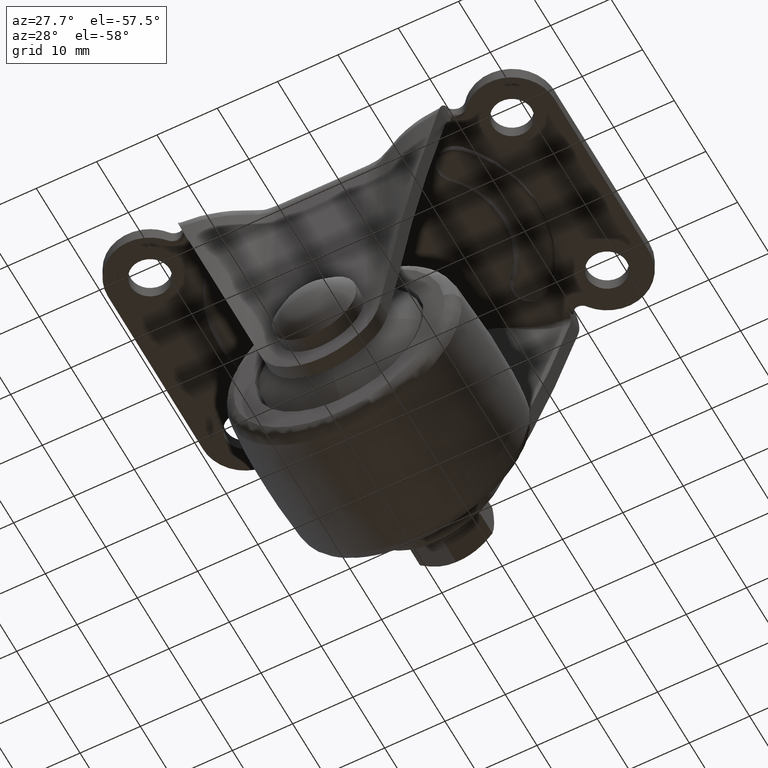
[diagram: clean part render]
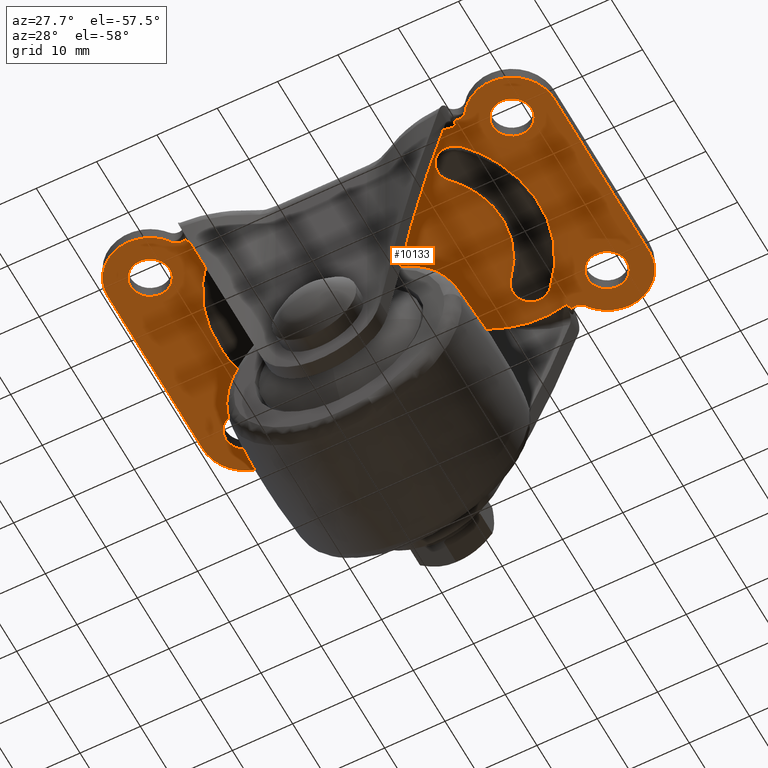
[diagram: same view with one face highlighted and labeled with its STEP entity id]
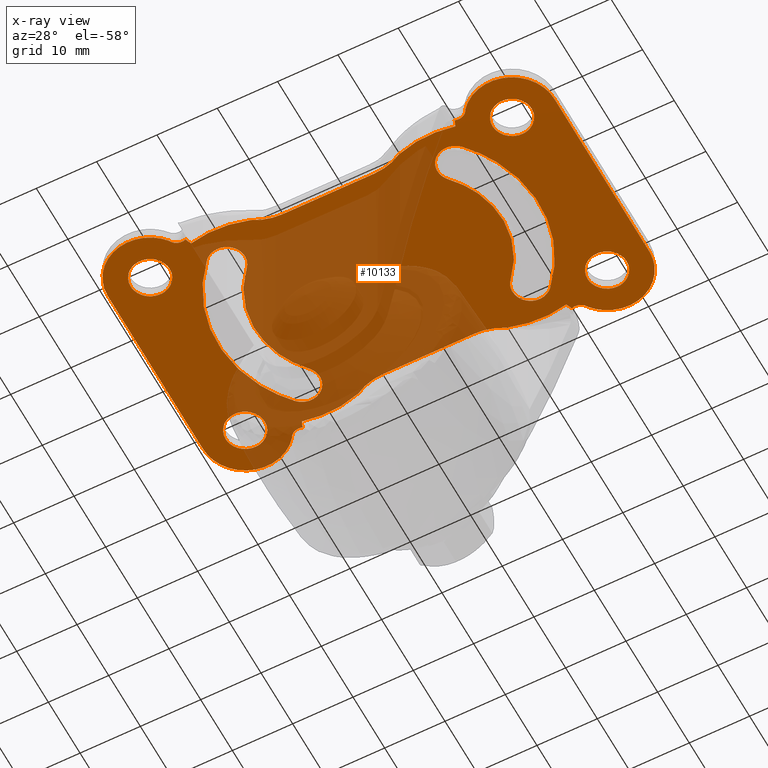
[diagram: x-ray of the same camera — body ghosted, the highlighted face saturated]
A machine part, auxiliary view. The second image highlights one B-rep face of the part: STEP entity #10133.
The next image is the same camera in x-ray: the body ghosted, the highlighted face saturated — about 42% of this face is hidden behind the body in this view.
In plain terms, the highlighted face is a freeform B-spline surface patch.
Its self-contained STEP definition (entity closure, byte-faithful):
#2371=CARTESIAN_POINT('',(-29.801592246333161,18.243938094859971,-2.299999999999971));
#2372=VERTEX_POINT('',#2371);
#2378=CARTESIAN_POINT('',(-26.750000000000000,14.999999999999821,-2.299999999999970));
#2379=VERTEX_POINT('',#2378);
#2380=CARTESIAN_POINT('',(-26.750000000000000,14.999999999999821,-2.299999999999970));
#2381=CARTESIAN_POINT('',(-26.750000000000007,18.057294717106135,-2.299999999999971));
#2382=CARTESIAN_POINT('',(-29.801592246333161,18.243938094859963,-2.299999999999971));
#2390=(BOUNDED_CURVE()B_SPLINE_CURVE(2,(#2380,#2381,#2382),.UNSPECIFIED.,.F.,.U.)B_SPLINE_CURVE_WITH_KNOTS((3,3),(0.500000000000000,0.739332962222973),.UNSPECIFIED.)CURVE()GEOMETRIC_REPRESENTATION_ITEM()RATIONAL_B_SPLINE_CURVE((1.0,0.719603993305420,0.976072041632492))REPRESENTATION_ITEM(''));
#2391=EDGE_CURVE('',#2379,#2372,#2390,.T.);
#2393=CARTESIAN_POINT('',(-30.383611262793419,11.772719039336801,-2.299999999999970));
#2394=VERTEX_POINT('',#2393);
#2395=CARTESIAN_POINT('',(-30.383611262793423,11.772719039336799,-2.299999999999969));
#2396=CARTESIAN_POINT('',(-30.192478389029347,11.749999999999815,-2.299999999999971));
#2397=CARTESIAN_POINT('',(-30.0,11.749999999999821,-2.299999999999970));
#2398=CARTESIAN_POINT('',(-26.750000000000007,11.749999999999819,-2.299999999999970));
#2399=CARTESIAN_POINT('',(-26.750000000000000,14.999999999999821,-2.299999999999970));
#2407=(BOUNDED_CURVE()B_SPLINE_CURVE(2,(#2395,#2396,#2397,#2398,#2399),.UNSPECIFIED.,.F.,.U.)B_SPLINE_CURVE_WITH_KNOTS((3,2,3),(0.229562473498996,0.250000000000000,0.500000000000000),.UNSPECIFIED.)CURVE()GEOMETRIC_REPRESENTATION_ITEM()RATIONAL_B_SPLINE_CURVE((0.956026754155255,0.976055948314143,1.0,0.707106781186547,1.0))REPRESENTATION_ITEM(''));
#2408=EDGE_CURVE('',#2394,#2379,#2407,.T.);
#2452=CARTESIAN_POINT('',(-33.250000000000000,14.999999999999821,-2.299999999999970));
#2453=VERTEX_POINT('',#2452);
#2454=CARTESIAN_POINT('',(-33.250000000000000,14.999999999999821,-2.299999999999970));
#2455=CARTESIAN_POINT('',(-33.250000000000000,12.113432790944227,-2.299999999999969));
#2456=CARTESIAN_POINT('',(-30.383611262793426,11.772719039336801,-2.299999999999970));
#2464=(BOUNDED_CURVE()B_SPLINE_CURVE(2,(#2454,#2455,#2456),.UNSPECIFIED.,.F.,.U.)B_SPLINE_CURVE_WITH_KNOTS((3,3),(0.0,0.229562473498996),.UNSPECIFIED.)CURVE()GEOMETRIC_REPRESENTATION_ITEM()RATIONAL_B_SPLINE_CURVE((1.0,0.731050832872405,0.956026754155255))REPRESENTATION_ITEM(''));
#2465=EDGE_CURVE('',#2453,#2394,#2464,.T.);
#2467=CARTESIAN_POINT('',(-29.801592246333158,18.243938094859967,-2.299999999999971));
#2468=CARTESIAN_POINT('',(-29.900703519100528,18.249999999999819,-2.299999999999970));
#2469=CARTESIAN_POINT('',(-30.0,18.249999999999819,-2.299999999999970));
#2470=CARTESIAN_POINT('',(-33.249999999999993,18.249999999999826,-2.299999999999970));
#2471=CARTESIAN_POINT('',(-33.250000000000000,14.999999999999821,-2.299999999999970));
#2479=(BOUNDED_CURVE()B_SPLINE_CURVE(2,(#2467,#2468,#2469,#2470,#2471),.UNSPECIFIED.,.F.,.U.)B_SPLINE_CURVE_WITH_KNOTS((3,2,3),(0.739332962222974,0.750000000000000,1.0),.UNSPECIFIED.)CURVE()GEOMETRIC_REPRESENTATION_ITEM()RATIONAL_B_SPLINE_CURVE((0.976072041632492,0.987502787881128,1.0,0.707106781186547,1.0))REPRESENTATION_ITEM(''));
#2480=EDGE_CURVE('',#2372,#2453,#2479,.T.);
#2557=CARTESIAN_POINT('',(-29.801592246333161,-11.756061905139850,-2.299999999999970));
#2558=VERTEX_POINT('',#2557);
#2564=CARTESIAN_POINT('',(-26.750000000000000,-15.0,-2.299999999999970));
#2565=VERTEX_POINT('',#2564);
#2566=CARTESIAN_POINT('',(-26.750000000000000,-15.0,-2.299999999999970));
#2567=CARTESIAN_POINT('',(-26.750000000000007,-11.942705282893685,-2.299999999999971));
#2568=CARTESIAN_POINT('',(-29.801592246333161,-11.756061905139855,-2.299999999999970));
#2576=(BOUNDED_CURVE()B_SPLINE_CURVE(2,(#2566,#2567,#2568),.UNSPECIFIED.,.F.,.U.)B_SPLINE_CURVE_WITH_KNOTS((3,3),(0.500000000000000,0.739332962222973),.UNSPECIFIED.)CURVE()GEOMETRIC_REPRESENTATION_ITEM()RATIONAL_B_SPLINE_CURVE((1.0,0.719603993305420,0.976072041632492))REPRESENTATION_ITEM(''));
#2577=EDGE_CURVE('',#2565,#2558,#2576,.T.);
#2579=CARTESIAN_POINT('',(-30.383611262793419,-18.227280960663020,-2.299999999999970));
#2580=VERTEX_POINT('',#2579);
#2581=CARTESIAN_POINT('',(-30.383611262793426,-18.227280960663020,-2.299999999999970));
#2582=CARTESIAN_POINT('',(-30.192478389029350,-18.250000000000004,-2.299999999999971));
#2583=CARTESIAN_POINT('',(-30.0,-18.250000000000000,-2.299999999999970));
#2584=CARTESIAN_POINT('',(-26.750000000000007,-18.250000000000000,-2.299999999999970));
#2585=CARTESIAN_POINT('',(-26.750000000000000,-15.0,-2.299999999999970));
#2593=(BOUNDED_CURVE()B_SPLINE_CURVE(2,(#2581,#2582,#2583,#2584,#2585),.UNSPECIFIED.,.F.,.U.)B_SPLINE_CURVE_WITH_KNOTS((3,2,3),(0.229562473498996,0.250000000000000,0.500000000000000),.UNSPECIFIED.)CURVE()GEOMETRIC_REPRESENTATION_ITEM()RATIONAL_B_SPLINE_CURVE((0.956026754155255,0.976055948314143,1.0,0.707106781186547,1.0))REPRESENTATION_ITEM(''));
#2594=EDGE_CURVE('',#2580,#2565,#2593,.T.);
#2638=CARTESIAN_POINT('',(-33.250000000000000,-15.0,-2.299999999999970));
#2639=VERTEX_POINT('',#2638);
#2640=CARTESIAN_POINT('',(-33.250000000000000,-15.0,-2.299999999999970));
#2641=CARTESIAN_POINT('',(-33.250000000000000,-17.886567209055592,-2.299999999999971));
#2642=CARTESIAN_POINT('',(-30.383611262793426,-18.227280960663020,-2.299999999999970));
#2650=(BOUNDED_CURVE()B_SPLINE_CURVE(2,(#2640,#2641,#2642),.UNSPECIFIED.,.F.,.U.)B_SPLINE_CURVE_WITH_KNOTS((3,3),(0.0,0.229562473498996),.UNSPECIFIED.)CURVE()GEOMETRIC_REPRESENTATION_ITEM()RATIONAL_B_SPLINE_CURVE((1.0,0.731050832872405,0.956026754155255))REPRESENTATION_ITEM(''));
#2651=EDGE_CURVE('',#2639,#2580,#2650,.T.);
#2653=CARTESIAN_POINT('',(-29.801592246333158,-11.756061905139855,-2.299999999999969));
#2654=CARTESIAN_POINT('',(-29.900703519100535,-11.750000000000004,-2.299999999999970));
#2655=CARTESIAN_POINT('',(-30.0,-11.750000000000000,-2.299999999999970));
#2656=CARTESIAN_POINT('',(-33.249999999999993,-11.750000000000004,-2.299999999999970));
#2657=CARTESIAN_POINT('',(-33.250000000000000,-15.0,-2.299999999999970));
#2665=(BOUNDED_CURVE()B_SPLINE_CURVE(2,(#2653,#2654,#2655,#2656,#2657),.UNSPECIFIED.,.F.,.U.)B_SPLINE_CURVE_WITH_KNOTS((3,2,3),(0.739332962222974,0.750000000000000,1.0),.UNSPECIFIED.)CURVE()GEOMETRIC_REPRESENTATION_ITEM()RATIONAL_B_SPLINE_CURVE((0.976072041632493,0.987502787881128,1.0,0.707106781186547,1.0))REPRESENTATION_ITEM(''));
#2666=EDGE_CURVE('',#2558,#2639,#2665,.T.);
#2743=CARTESIAN_POINT('',(30.198407753666839,18.243938094859971,-2.299999999999971));
#2744=VERTEX_POINT('',#2743);
#2750=CARTESIAN_POINT('',(33.250000000000000,14.999999999999821,-2.299999999999970));
#2751=VERTEX_POINT('',#2750);
#2752=CARTESIAN_POINT('',(33.250000000000000,14.999999999999821,-2.299999999999970));
#2753=CARTESIAN_POINT('',(33.250000000000000,18.057294717106135,-2.299999999999971));
#2754=CARTESIAN_POINT('',(30.198407753666846,18.243938094859963,-2.299999999999971));
#2762=(BOUNDED_CURVE()B_SPLINE_CURVE(2,(#2752,#2753,#2754),.UNSPECIFIED.,.F.,.U.)B_SPLINE_CURVE_WITH_KNOTS((3,3),(0.500000000000000,0.739332962222973),.UNSPECIFIED.)CURVE()GEOMETRIC_REPRESENTATION_ITEM()RATIONAL_B_SPLINE_CURVE((1.0,0.719603993305420,0.976072041632492))REPRESENTATION_ITEM(''));
#2763=EDGE_CURVE('',#2751,#2744,#2762,.T.);
#2765=CARTESIAN_POINT('',(29.616388737206581,11.772719039336801,-2.299999999999970));
#2766=VERTEX_POINT('',#2765);
#2767=CARTESIAN_POINT('',(29.616388737206588,11.772719039336797,-2.299999999999970));
#2768=CARTESIAN_POINT('',(29.807521610970664,11.749999999999819,-2.299999999999970));
#2769=CARTESIAN_POINT('',(30.0,11.749999999999821,-2.299999999999970));
#2770=CARTESIAN_POINT('',(33.249999999999993,11.749999999999819,-2.299999999999970));
#2771=CARTESIAN_POINT('',(33.250000000000000,14.999999999999821,-2.299999999999970));
#2779=(BOUNDED_CURVE()B_SPLINE_CURVE(2,(#2767,#2768,#2769,#2770,#2771),.UNSPECIFIED.,.F.,.U.)B_SPLINE_CURVE_WITH_KNOTS((3,2,3),(0.229562473498997,0.250000000000000,0.500000000000000),.UNSPECIFIED.)CURVE()GEOMETRIC_REPRESENTATION_ITEM()RATIONAL_B_SPLINE_CURVE((0.956026754155256,0.976055948314144,1.0,0.707106781186547,1.0))REPRESENTATION_ITEM(''));
#2780=EDGE_CURVE('',#2766,#2751,#2779,.T.);
#2824=CARTESIAN_POINT('',(26.750000000000000,14.999999999999821,-2.299999999999970));
#2825=VERTEX_POINT('',#2824);
#2826=CARTESIAN_POINT('',(26.750000000000000,14.999999999999821,-2.299999999999970));
#2827=CARTESIAN_POINT('',(26.750000000000004,12.113432790944216,-2.299999999999970));
#2828=CARTESIAN_POINT('',(29.616388737206584,11.772719039336801,-2.299999999999970));
#2836=(BOUNDED_CURVE()B_SPLINE_CURVE(2,(#2826,#2827,#2828),.UNSPECIFIED.,.F.,.U.)B_SPLINE_CURVE_WITH_KNOTS((3,3),(0.0,0.229562473498997),.UNSPECIFIED.)CURVE()GEOMETRIC_REPRESENTATION_ITEM()RATIONAL_B_SPLINE_CURVE((1.0,0.731050832872404,0.956026754155256))REPRESENTATION_ITEM(''));
#2837=EDGE_CURVE('',#2825,#2766,#2836,.T.);
#2839=CARTESIAN_POINT('',(30.198407753666839,18.243938094859967,-2.299999999999971));
#2840=CARTESIAN_POINT('',(30.099296480899465,18.249999999999819,-2.299999999999970));
#2841=CARTESIAN_POINT('',(30.0,18.249999999999819,-2.299999999999970));
#2842=CARTESIAN_POINT('',(26.750000000000007,18.249999999999826,-2.299999999999970));
#2843=CARTESIAN_POINT('',(26.750000000000000,14.999999999999821,-2.299999999999970));
#2851=(BOUNDED_CURVE()B_SPLINE_CURVE(2,(#2839,#2840,#2841,#2842,#2843),.UNSPECIFIED.,.F.,.U.)B_SPLINE_CURVE_WITH_KNOTS((3,2,3),(0.739332962222974,0.750000000000000,1.0),.UNSPECIFIED.)CURVE()GEOMETRIC_REPRESENTATION_ITEM()RATIONAL_B_SPLINE_CURVE((0.976072041632492,0.987502787881128,1.0,0.707106781186547,1.0))REPRESENTATION_ITEM(''));
#2852=EDGE_CURVE('',#2744,#2825,#2851,.T.);
#2929=CARTESIAN_POINT('',(30.198407753666839,-11.756061905139850,-2.299999999999971));
#2930=VERTEX_POINT('',#2929);
#2936=CARTESIAN_POINT('',(33.250000000000000,-15.0,-2.299999999999970));
#2937=VERTEX_POINT('',#2936);
#2938=CARTESIAN_POINT('',(33.250000000000000,-15.0,-2.299999999999970));
#2939=CARTESIAN_POINT('',(33.250000000000000,-11.942705282893685,-2.299999999999971));
#2940=CARTESIAN_POINT('',(30.198407753666846,-11.756061905139855,-2.299999999999971));
#2948=(BOUNDED_CURVE()B_SPLINE_CURVE(2,(#2938,#2939,#2940),.UNSPECIFIED.,.F.,.U.)B_SPLINE_CURVE_WITH_KNOTS((3,3),(0.500000000000000,0.739332962222973),.UNSPECIFIED.)CURVE()GEOMETRIC_REPRESENTATION_ITEM()RATIONAL_B_SPLINE_CURVE((1.0,0.719603993305420,0.976072041632492))REPRESENTATION_ITEM(''));
#2949=EDGE_CURVE('',#2937,#2930,#2948,.T.);
#2951=CARTESIAN_POINT('',(29.616388737206581,-18.227280960663020,-2.299999999999970));
#2952=VERTEX_POINT('',#2951);
#2953=CARTESIAN_POINT('',(29.616388737206577,-18.227280960663027,-2.299999999999971));
#2954=CARTESIAN_POINT('',(29.807521610970653,-18.250000000000004,-2.299999999999970));
#2955=CARTESIAN_POINT('',(30.0,-18.250000000000000,-2.299999999999970));
#2956=CARTESIAN_POINT('',(33.249999999999993,-18.250000000000000,-2.299999999999970));
#2957=CARTESIAN_POINT('',(33.250000000000000,-15.0,-2.299999999999970));
#2965=(BOUNDED_CURVE()B_SPLINE_CURVE(2,(#2953,#2954,#2955,#2956,#2957),.UNSPECIFIED.,.F.,.U.)B_SPLINE_CURVE_WITH_KNOTS((3,2,3),(0.229562473498996,0.250000000000000,0.500000000000000),.UNSPECIFIED.)CURVE()GEOMETRIC_REPRESENTATION_ITEM()RATIONAL_B_SPLINE_CURVE((0.956026754155255,0.976055948314143,1.0,0.707106781186547,1.0))REPRESENTATION_ITEM(''));
#2966=EDGE_CURVE('',#2952,#2937,#2965,.T.);
#3010=CARTESIAN_POINT('',(26.750000000000000,-15.0,-2.299999999999970));
#3011=VERTEX_POINT('',#3010);
#3012=CARTESIAN_POINT('',(26.750000000000000,-15.0,-2.299999999999970));
#3013=CARTESIAN_POINT('',(26.749999999999996,-17.886567209055602,-2.299999999999971));
#3014=CARTESIAN_POINT('',(29.616388737206577,-18.227280960663027,-2.299999999999971));
#3022=(BOUNDED_CURVE()B_SPLINE_CURVE(2,(#3012,#3013,#3014),.UNSPECIFIED.,.F.,.U.)B_SPLINE_CURVE_WITH_KNOTS((3,3),(0.0,0.229562473498997),.UNSPECIFIED.)CURVE()GEOMETRIC_REPRESENTATION_ITEM()RATIONAL_B_SPLINE_CURVE((1.0,0.731050832872404,0.956026754155255))REPRESENTATION_ITEM(''));
#3023=EDGE_CURVE('',#3011,#2952,#3022,.T.);
#3025=CARTESIAN_POINT('',(30.198407753666839,-11.756061905139850,-2.299999999999971));
#3026=CARTESIAN_POINT('',(30.099296480899465,-11.749999999999995,-2.299999999999970));
#3027=CARTESIAN_POINT('',(30.0,-11.750000000000000,-2.299999999999970));
#3028=CARTESIAN_POINT('',(26.750000000000007,-11.750000000000004,-2.299999999999970));
#3029=CARTESIAN_POINT('',(26.750000000000000,-15.0,-2.299999999999970));
#3037=(BOUNDED_CURVE()B_SPLINE_CURVE(2,(#3025,#3026,#3027,#3028,#3029),.UNSPECIFIED.,.F.,.U.)B_SPLINE_CURVE_WITH_KNOTS((3,2,3),(0.739332962222974,0.750000000000000,1.0),.UNSPECIFIED.)CURVE()GEOMETRIC_REPRESENTATION_ITEM()RATIONAL_B_SPLINE_CURVE((0.976072041632492,0.987502787881128,1.0,0.707106781186547,1.0))REPRESENTATION_ITEM(''));
#3038=EDGE_CURVE('',#2930,#3011,#3037,.T.);
#3788=CARTESIAN_POINT('',(-22.287741925040500,18.488236028080049,-2.300000000000000));
#3789=VERTEX_POINT('',#3788);
#3843=CARTESIAN_POINT('',(-21.893678653610749,17.502551349098500,-2.300000000000000));
#3844=VERTEX_POINT('',#3843);
#3859=CARTESIAN_POINT('',(-22.287741925040500,18.488236028080049,-2.300000000000000));
#3860=CARTESIAN_POINT('',(-22.212083928035540,18.089788906326930,-2.300000000000000));
#3861=CARTESIAN_POINT('',(-21.893678653610749,17.502551349098500,-2.300000000000000));
#3862=QUASI_UNIFORM_CURVE('',2,(#3859,#3860,#3861),.UNSPECIFIED.,.F.,.U.);
#3863=EDGE_CURVE('',#3789,#3844,#3862,.T.);
#4170=CARTESIAN_POINT('',(-22.287741917613602,-18.488235988250700,-2.300000000000000));
#4171=VERTEX_POINT('',#4170);
#4220=CARTESIAN_POINT('',(-21.893678653610749,-17.502551347297452,-2.299999999999970));
#4221=VERTEX_POINT('',#4220);
#4222=CARTESIAN_POINT('',(-21.893678653610749,-17.502551347297452,-2.299999999999970));
#4223=CARTESIAN_POINT('',(-22.212088430083739,-18.089772220311321,-2.299999999999989));
#4224=CARTESIAN_POINT('',(-22.287741917613602,-18.488235988250700,-2.300000000000000));
#4225=QUASI_UNIFORM_CURVE('',2,(#4222,#4223,#4224),.UNSPECIFIED.,.F.,.U.);
#4226=EDGE_CURVE('',#4221,#4171,#4225,.T.);
#4600=CARTESIAN_POINT('',(22.287742355245850,-18.488235426357651,-2.300000000000000));
#4601=VERTEX_POINT('',#4600);
#4655=CARTESIAN_POINT('',(21.893679105745449,-17.502551334579351,-2.300000000000000));
#4656=VERTEX_POINT('',#4655);
#4671=CARTESIAN_POINT('',(22.287742355245850,-18.488235426357651,-2.300000000000000));
#4672=CARTESIAN_POINT('',(22.212084233839199,-18.089788629135288,-2.300000000000000));
#4673=CARTESIAN_POINT('',(21.893679105745449,-17.502551334579351,-2.300000000000000));
#4674=QUASI_UNIFORM_CURVE('',2,(#4671,#4672,#4673),.UNSPECIFIED.,.F.,.U.);
#4675=EDGE_CURVE('',#4601,#4656,#4674,.T.);
#4701=CARTESIAN_POINT('',(21.893679105745449,17.502551337154149,-2.299999999999970));
#4702=VERTEX_POINT('',#4701);
#4703=CARTESIAN_POINT('',(22.287154868906800,18.485099101089101,-2.300000000000000));
#4704=VERTEX_POINT('',#4703);
#4705=CARTESIAN_POINT('',(21.893679105745449,17.502551337154149,-2.299999999999970));
#4706=CARTESIAN_POINT('',(22.211721536042450,18.087811630946351,-2.300000000000000));
#4707=CARTESIAN_POINT('',(22.287154868906800,18.485099101089101,-2.300000000000000));
#4708=QUASI_UNIFORM_CURVE('',2,(#4705,#4706,#4707),.UNSPECIFIED.,.F.,.U.);
#4709=EDGE_CURVE('',#4702,#4704,#4708,.T.);
#5155=CARTESIAN_POINT('',(24.538033455776102,19.378004292533252,-2.299999999999970));
#5156=VERTEX_POINT('',#5155);
#5157=CARTESIAN_POINT('',(22.287154868906800,18.485099101089101,-2.300000000000000));
#5158=CARTESIAN_POINT('',(22.893035078014030,18.264083129049911,-2.300000000000000));
#5159=CARTESIAN_POINT('',(23.519092996884549,18.466123691941899,-2.300000000000000));
#5160=CARTESIAN_POINT('',(23.883293518584448,18.583657990593601,-2.300000000000000));
#5161=CARTESIAN_POINT('',(24.154763042868350,18.834271772613452,-2.300000000000000));
#5162=CARTESIAN_POINT('',(24.411351897118251,19.071148097340298,-2.300000000000000));
#5163=CARTESIAN_POINT('',(24.538033455776102,19.378004292533252,-2.300000000000000));
#5164=B_SPLINE_CURVE_WITH_KNOTS('',2,(#5157,#5158,#5159,#5160,#5161,#5162,#5163),.UNSPECIFIED.,.F.,.U.,(3,2,2,3),(0.123065113859964,0.500000000000000,0.750000000000000,1.0),.UNSPECIFIED.);
#5165=EDGE_CURVE('',#4704,#5156,#5164,.T.);
#5217=CARTESIAN_POINT('',(24.538033206378699,-19.378003968177349,-2.299999999999970));
#5218=VERTEX_POINT('',#5217);
#5234=CARTESIAN_POINT('',(24.538033206378699,-19.378003968177349,-2.299999999999970));
#5235=CARTESIAN_POINT('',(24.411696801139598,-19.072017008902669,-2.299999999999973));
#5236=CARTESIAN_POINT('',(24.155015792452730,-18.834964234688819,-2.299999999999977));
#5237=CARTESIAN_POINT('',(23.884835322559798,-18.585444294533559,-2.299999999999981));
#5238=CARTESIAN_POINT('',(23.519676076365538,-18.467720306056609,-2.299999999999986));
#5239=CARTESIAN_POINT('',(22.894068600024379,-18.266030199333390,-2.299999999999994));
#5240=CARTESIAN_POINT('',(22.287742355245850,-18.488235426357651,-2.300000000000000));
#5241=B_SPLINE_CURVE_WITH_KNOTS('',2,(#5234,#5235,#5236,#5237,#5238,#5239,#5240),.UNSPECIFIED.,.F.,.U.,(3,2,2,3),(0.0,0.250000000000000,0.500000000000000,0.877179987065054),.UNSPECIFIED.);
#5242=EDGE_CURVE('',#5218,#4601,#5241,.T.);
#5279=CARTESIAN_POINT('',(-24.538033455775999,-19.378004292533252,-2.299999999999970));
#5280=VERTEX_POINT('',#5279);
#5281=CARTESIAN_POINT('',(-22.287741917613602,-18.488235988250700,-2.300000000000000));
#5282=CARTESIAN_POINT('',(-22.893645059963401,-18.266369908960431,-2.299999999999994));
#5283=CARTESIAN_POINT('',(-23.519664571145139,-18.467690547479840,-2.299999999999986));
#5284=CARTESIAN_POINT('',(-23.883694976704490,-18.584758518012180,-2.299999999999981));
#5285=CARTESIAN_POINT('',(-24.155010971145028,-18.834951411944910,-2.299999999999977));
#5286=CARTESIAN_POINT('',(-24.411454713168389,-19.071429921367290,-2.299999999999973));
#5287=CARTESIAN_POINT('',(-24.538033455775999,-19.378004292533252,-2.299999999999970));
#5288=B_SPLINE_CURVE_WITH_KNOTS('',2,(#5281,#5282,#5283,#5284,#5285,#5286,#5287),.UNSPECIFIED.,.F.,.U.,(3,2,2,3),(0.122912130444339,0.500000000000000,0.750000000000000,1.0),.UNSPECIFIED.);
#5289=EDGE_CURVE('',#4171,#5280,#5288,.T.);
#5341=CARTESIAN_POINT('',(-24.538033206378799,19.378003968177300,-2.299999999999970));
#5342=VERTEX_POINT('',#5341);
#5358=CARTESIAN_POINT('',(-24.538033206378799,19.378003968177300,-2.299999999999970));
#5359=CARTESIAN_POINT('',(-24.411696719683761,19.072016978170879,-2.299999999999973));
#5360=CARTESIAN_POINT('',(-24.155015599684461,18.834964226703349,-2.299999999999977));
#5361=CARTESIAN_POINT('',(-23.884835015112909,18.585444312788479,-2.299999999999981));
#5362=CARTESIAN_POINT('',(-23.519675682227270,18.467720439031691,-2.299999999999986));
#5363=CARTESIAN_POINT('',(-22.894068058903141,18.266030529349042,-2.299999999999994));
#5364=CARTESIAN_POINT('',(-22.287741925040500,18.488236028080049,-2.300000000000000));
#5365=B_SPLINE_CURVE_WITH_KNOTS('',2,(#5358,#5359,#5360,#5361,#5362,#5363,#5364),.UNSPECIFIED.,.F.,.U.,(3,2,2,3),(0.0,0.250000000000000,0.500000000000000,0.877179958792806),.UNSPECIFIED.);
#5366=EDGE_CURVE('',#5342,#3789,#5365,.T.);
#6957=CARTESIAN_POINT('',(12.296251224727920,-17.037886183437301,-2.299999999999970));
#6958=VERTEX_POINT('',#6957);
#6968=CARTESIAN_POINT('',(21.893679105745449,-17.502551334579351,-2.300000000000000));
#6969=CARTESIAN_POINT('',(19.616073891285549,-18.048010104319051,-2.300000000000000));
#6970=CARTESIAN_POINT('',(17.205155648617250,-17.944508052456850,-2.300000000000000));
#6971=CARTESIAN_POINT('',(14.703969967080740,-17.837130769583599,-2.300000000000000));
#6972=CARTESIAN_POINT('',(12.296251224727900,-17.037886183437251,-2.300000000000000));
#6973=B_SPLINE_CURVE_WITH_KNOTS('',2,(#6968,#6969,#6970,#6971,#6972),.UNSPECIFIED.,.F.,.U.,(3,2,3),(0.0,0.500000000000000,1.0),.UNSPECIFIED.);
#6974=EDGE_CURVE('',#4656,#6958,#6973,.T.);
#7017=CARTESIAN_POINT('',(-12.296251224728040,-17.037886183437301,-2.299999999999970));
#7018=VERTEX_POINT('',#7017);
#7019=CARTESIAN_POINT('',(-12.296251224728040,-17.037886183437301,-2.300000000000000));
#7020=CARTESIAN_POINT('',(-14.703045843317501,-17.836823980802301,-2.300000000000000));
#7021=CARTESIAN_POINT('',(-17.205155409028151,-17.944507994528450,-2.300000000000000));
#7022=CARTESIAN_POINT('',(-19.615162727429301,-18.048228177174050,-2.300000000000000));
#7023=CARTESIAN_POINT('',(-21.893678653610749,-17.502551347297452,-2.299999999999970));
#7024=B_SPLINE_CURVE_WITH_KNOTS('',2,(#7019,#7020,#7021,#7022,#7023),.UNSPECIFIED.,.F.,.U.,(3,2,3),(0.0,0.500000000000000,1.0),.UNSPECIFIED.);
#7025=EDGE_CURVE('',#7018,#4221,#7024,.T.);
#7093=CARTESIAN_POINT('',(-12.296251224728040,17.037886183437301,-2.299999999999970));
#7094=VERTEX_POINT('',#7093);
#7104=CARTESIAN_POINT('',(-21.893678653610749,17.502551349098500,-2.300000000000000));
#7105=CARTESIAN_POINT('',(-19.616073524718551,18.048010051164749,-2.300000000000000));
#7106=CARTESIAN_POINT('',(-17.205155404936448,17.944507994348999,-2.300000000000000));
#7107=CARTESIAN_POINT('',(-14.703969852087999,17.837130706388251,-2.300000000000000));
#7108=CARTESIAN_POINT('',(-12.296251224728040,17.037886183437301,-2.300000000000000));
#7109=B_SPLINE_CURVE_WITH_KNOTS('',2,(#7104,#7105,#7106,#7107,#7108),.UNSPECIFIED.,.F.,.U.,(3,2,3),(0.0,0.500000000000000,1.0),.UNSPECIFIED.);
#7110=EDGE_CURVE('',#3844,#7094,#7109,.T.);
#7153=CARTESIAN_POINT('',(12.296251224727920,17.037886183437301,-2.299999999999970));
#7154=VERTEX_POINT('',#7153);
#7155=CARTESIAN_POINT('',(12.296251224727920,17.037886183437301,-2.300000000000000));
#7156=CARTESIAN_POINT('',(14.703045953452239,17.836824042332999,-2.300000000000000));
#7157=CARTESIAN_POINT('',(17.205155642770851,17.944508052197602,-2.300000000000000));
#7158=CARTESIAN_POINT('',(19.615163079211751,18.048228231079950,-2.300000000000000));
#7159=CARTESIAN_POINT('',(21.893679105745449,17.502551337154149,-2.299999999999970));
#7160=B_SPLINE_CURVE_WITH_KNOTS('',2,(#7155,#7156,#7157,#7158,#7159),.UNSPECIFIED.,.F.,.U.,(3,2,3),(0.0,0.500000000000000,1.0),.UNSPECIFIED.);
#7161=EDGE_CURVE('',#7154,#4702,#7160,.T.);
#7340=CARTESIAN_POINT('',(16.737922621537251,9.811178079250402,-2.299999999999970));
#7341=VERTEX_POINT('',#7340);
#7372=CARTESIAN_POINT('',(16.737922621537251,-9.811178079250391,-2.299999999999970));
#7373=VERTEX_POINT('',#7372);
#7387=CARTESIAN_POINT('',(16.737922621537258,9.811178079250404,-2.299999999999970));
#7388=CARTESIAN_POINT('',(25.753788624687221,5.204170E-015,-2.299999999999970));
#7389=CARTESIAN_POINT('',(16.737922621537258,-9.811178079250398,-2.299999999999970));
#7397=(BOUNDED_CURVE()B_SPLINE_CURVE(2,(#7387,#7388,#7389),.UNSPECIFIED.,.F.,.U.)CURVE()GEOMETRIC_REPRESENTATION_ITEM()QUASI_UNIFORM_CURVE()RATIONAL_B_SPLINE_CURVE((1.0,0.736320459487548,1.0))REPRESENTATION_ITEM(''));
#7398=EDGE_CURVE('',#7341,#7373,#7397,.T.);
#7428=CARTESIAN_POINT('',(21.155845368515600,-13.870975931573961,-2.299999999999970));
#7429=VERTEX_POINT('',#7428);
#7443=CARTESIAN_POINT('',(21.155845368515621,-13.870975931573980,-2.299999999999970));
#7444=CARTESIAN_POINT('',(19.125946441915112,-16.079937294677499,-2.299999999999971));
#7445=CARTESIAN_POINT('',(16.916985073838109,-14.050038373489180,-2.299999999999970));
#7446=CARTESIAN_POINT('',(14.708023705761114,-12.020139452300857,-2.299999999999971));
#7447=CARTESIAN_POINT('',(16.737922621537258,-9.811178079250396,-2.299999999999970));
#7455=(BOUNDED_CURVE()B_SPLINE_CURVE(2,(#7443,#7444,#7445,#7446,#7447),.UNSPECIFIED.,.F.,.U.)B_SPLINE_CURVE_WITH_KNOTS((3,2,3),(0.0,0.500000000000000,1.0),.UNSPECIFIED.)CURVE()GEOMETRIC_REPRESENTATION_ITEM()RATIONAL_B_SPLINE_CURVE((1.0,0.707106782052790,1.0,0.707106782052790,1.0))REPRESENTATION_ITEM(''));
#7456=EDGE_CURVE('',#7429,#7373,#7455,.T.);
#7500=CARTESIAN_POINT('',(21.155845419494700,13.870975958455659,-2.299999999999970));
#7501=VERTEX_POINT('',#7500);
#7533=CARTESIAN_POINT('',(16.737922621537258,9.811178079250411,-2.299999999999970));
#7534=CARTESIAN_POINT('',(14.708023700787649,12.020139457713048,-2.299999999999971));
#7535=CARTESIAN_POINT('',(16.916985079250288,14.050038378462659,-2.299999999999970));
#7536=CARTESIAN_POINT('',(19.125946457712924,16.079937299212272,-2.299999999999971));
#7537=CARTESIAN_POINT('',(21.155845419494700,13.870975958455659,-2.299999999999970));
#7545=(BOUNDED_CURVE()B_SPLINE_CURVE(2,(#7533,#7534,#7535,#7536,#7537),.UNSPECIFIED.,.F.,.U.)B_SPLINE_CURVE_WITH_KNOTS((3,2,3),(0.0,0.500000000000000,1.0),.UNSPECIFIED.)CURVE()GEOMETRIC_REPRESENTATION_ITEM()RATIONAL_B_SPLINE_CURVE((1.0,0.707106781186548,1.0,0.707106781186548,1.0))REPRESENTATION_ITEM(''));
#7546=EDGE_CURVE('',#7341,#7501,#7545,.T.);
#7583=CARTESIAN_POINT('',(21.155845419494710,13.870975958455670,-2.299999999999970));
#7584=CARTESIAN_POINT('',(33.902414654522445,-9.982463E-009,-2.299999999999971));
#7585=CARTESIAN_POINT('',(21.155845368515600,-13.870975931573961,-2.299999999999970));
#7593=(BOUNDED_CURVE()B_SPLINE_CURVE(2,(#7583,#7584,#7585),.UNSPECIFIED.,.F.,.U.)CURVE()GEOMETRIC_REPRESENTATION_ITEM()QUASI_UNIFORM_CURVE()RATIONAL_B_SPLINE_CURVE((1.0,0.736320459244939,1.0))REPRESENTATION_ITEM(''));
#7594=EDGE_CURVE('',#7501,#7429,#7593,.T.);
#7616=CARTESIAN_POINT('',(-16.737922621537251,-9.811178079250391,-2.299999999999970));
#7617=VERTEX_POINT('',#7616);
#7648=CARTESIAN_POINT('',(-16.737922621537251,9.811178079250411,-2.299999999999970));
#7649=VERTEX_POINT('',#7648);
#7663=CARTESIAN_POINT('',(-16.737922621537258,-9.811178079250405,-2.299999999999970));
#7664=CARTESIAN_POINT('',(-25.753788624687225,5.204170E-015,-2.299999999999970));
#7665=CARTESIAN_POINT('',(-16.737922621537251,9.811178079250411,-2.299999999999970));
#7673=(BOUNDED_CURVE()B_SPLINE_CURVE(2,(#7663,#7664,#7665),.UNSPECIFIED.,.F.,.U.)CURVE()GEOMETRIC_REPRESENTATION_ITEM()QUASI_UNIFORM_CURVE()RATIONAL_B_SPLINE_CURVE((1.0,0.736320459487547,1.0))REPRESENTATION_ITEM(''));
#7674=EDGE_CURVE('',#7617,#7649,#7673,.T.);
#7704=CARTESIAN_POINT('',(-21.155845419494700,13.870975958455640,-2.299999999999970));
#7705=VERTEX_POINT('',#7704);
#7719=CARTESIAN_POINT('',(-21.155845419494700,13.870975958455640,-2.299999999999970));
#7720=CARTESIAN_POINT('',(-19.125946457712935,16.079937299212268,-2.299999999999970));
#7721=CARTESIAN_POINT('',(-16.916985079250288,14.050038378462670,-2.299999999999970));
#7722=CARTESIAN_POINT('',(-14.708023700787656,12.020139457713059,-2.299999999999970));
#7723=CARTESIAN_POINT('',(-16.737922621537258,9.811178079250416,-2.299999999999970));
#7731=(BOUNDED_CURVE()B_SPLINE_CURVE(2,(#7719,#7720,#7721,#7722,#7723),.UNSPECIFIED.,.F.,.U.)B_SPLINE_CURVE_WITH_KNOTS((3,2,3),(0.0,0.500000000000000,1.0),.UNSPECIFIED.)CURVE()GEOMETRIC_REPRESENTATION_ITEM()RATIONAL_B_SPLINE_CURVE((1.0,0.707106781186547,1.0,0.707106781186547,1.0))REPRESENTATION_ITEM(''));
#7732=EDGE_CURVE('',#7705,#7649,#7731,.T.);
#7776=CARTESIAN_POINT('',(-21.155845351524100,-13.870976032422121,-2.299999999999970));
#7777=VERTEX_POINT('',#7776);
#7811=CARTESIAN_POINT('',(-16.737922621537258,-9.811178079250395,-2.299999999999970));
#7812=CARTESIAN_POINT('',(-14.708023734772963,-12.020139420729800,-2.299999999999970));
#7813=CARTESIAN_POINT('',(-16.916985042267061,-14.050038344477340,-2.299999999999970));
#7814=CARTESIAN_POINT('',(-19.125946349761151,-16.079937268224860,-2.299999999999970));
#7815=CARTESIAN_POINT('',(-21.155845351524100,-13.870976032422121,-2.299999999999970));
#7823=(BOUNDED_CURVE()B_SPLINE_CURVE(2,(#7811,#7812,#7813,#7814,#7815),.UNSPECIFIED.,.F.,.U.)B_SPLINE_CURVE_WITH_KNOTS((3,2,3),(0.0,0.500000000000000,1.0),.UNSPECIFIED.)CURVE()GEOMETRIC_REPRESENTATION_ITEM()RATIONAL_B_SPLINE_CURVE((1.0,0.707106787105867,1.0,0.707106787105867,1.0))REPRESENTATION_ITEM(''));
#7824=EDGE_CURVE('',#7617,#7777,#7823,.T.);
#7861=CARTESIAN_POINT('',(-21.155845351524110,-13.870976032422130,-2.299999999999970));
#7862=CARTESIAN_POINT('',(-33.902414708033255,-0.000000068213634,-2.299999999999971));
#7863=CARTESIAN_POINT('',(-21.155845419494732,13.870975958455650,-2.299999999999970));
#7871=(BOUNDED_CURVE()B_SPLINE_CURVE(2,(#7861,#7862,#7863),.UNSPECIFIED.,.F.,.U.)CURVE()GEOMETRIC_REPRESENTATION_ITEM()QUASI_UNIFORM_CURVE()RATIONAL_B_SPLINE_CURVE((1.0,0.736320457829728,1.0))REPRESENTATION_ITEM(''));
#7872=EDGE_CURVE('',#7777,#7705,#7871,.T.);
#9072=CARTESIAN_POINT('',(-37.0,-14.999999999999840,-2.299999999999970));
#9073=VERTEX_POINT('',#9072);
#9079=CARTESIAN_POINT('',(-37.0,-14.999999999999840,-2.299999999999970));
#9080=CARTESIAN_POINT('',(-36.999999999999993,-19.960234843185990,-2.299999999999970));
#9081=CARTESIAN_POINT('',(-32.320154546097839,-21.604307903347589,-2.299999999999970));
#9082=CARTESIAN_POINT('',(-27.640309092195665,-23.248380963509192,-2.299999999999970));
#9083=CARTESIAN_POINT('',(-24.538033455775999,-19.378004292533252,-2.299999999999970));
#9091=(BOUNDED_CURVE()B_SPLINE_CURVE(2,(#9079,#9080,#9081,#9082,#9083),.UNSPECIFIED.,.F.,.U.)B_SPLINE_CURVE_WITH_KNOTS((3,2,3),(0.0,0.500000000000000,1.0),.UNSPECIFIED.)CURVE()GEOMETRIC_REPRESENTATION_ITEM()RATIONAL_B_SPLINE_CURVE((1.0,0.815919925434643,1.0,0.815919925434643,1.0))REPRESENTATION_ITEM(''));
#9092=EDGE_CURVE('',#9073,#5280,#9091,.T.);
#9181=CARTESIAN_POINT('',(37.0,-15.0,-2.299999999999970));
#9182=VERTEX_POINT('',#9181);
#9183=CARTESIAN_POINT('',(24.538033206378699,-19.378003968177360,-2.299999999999970));
#9184=CARTESIAN_POINT('',(27.640308706250202,-23.248380945477514,-2.299999999999970));
#9185=CARTESIAN_POINT('',(32.320154353125027,-21.604307971140699,-2.299999999999970));
#9186=CARTESIAN_POINT('',(37.0,-19.960234996803838,-2.299999999999970));
#9187=CARTESIAN_POINT('',(37.0,-15.0,-2.299999999999970));
#9195=(BOUNDED_CURVE()B_SPLINE_CURVE(2,(#9183,#9184,#9185,#9186,#9187),.UNSPECIFIED.,.F.,.U.)B_SPLINE_CURVE_WITH_KNOTS((3,2,3),(0.0,0.500000000000000,1.0),.UNSPECIFIED.)CURVE()GEOMETRIC_REPRESENTATION_ITEM()RATIONAL_B_SPLINE_CURVE((1.0,0.815919916987883,1.0,0.815919916987883,1.0))REPRESENTATION_ITEM(''));
#9196=EDGE_CURVE('',#5218,#9182,#9195,.T.);
#9219=CARTESIAN_POINT('',(37.0,14.999999999999821,-2.299999999999970));
#9220=VERTEX_POINT('',#9219);
#9221=CARTESIAN_POINT('',(37.0,14.999999999999821,-2.299999999999970));
#9222=CARTESIAN_POINT('',(37.0,-15.0,-2.299999999999970));
#9223=QUASI_UNIFORM_CURVE('',1,(#9221,#9222),.UNSPECIFIED.,.F.,.U.);
#9224=EDGE_CURVE('',#9220,#9182,#9223,.T.);
#9274=CARTESIAN_POINT('',(37.0,14.999999999999821,-2.299999999999970));
#9275=CARTESIAN_POINT('',(37.0,19.960234843185933,-2.299999999999970));
#9276=CARTESIAN_POINT('',(32.320154546097882,21.604307903347561,-2.299999999999970));
#9277=CARTESIAN_POINT('',(27.640309092195750,23.248380963509177,-2.299999999999970));
#9278=CARTESIAN_POINT('',(24.538033455776102,19.378004292533252,-2.299999999999970));
#9286=(BOUNDED_CURVE()B_SPLINE_CURVE(2,(#9274,#9275,#9276,#9277,#9278),.UNSPECIFIED.,.F.,.U.)B_SPLINE_CURVE_WITH_KNOTS((3,2,3),(0.0,0.500000000000000,1.0),.UNSPECIFIED.)CURVE()GEOMETRIC_REPRESENTATION_ITEM()RATIONAL_B_SPLINE_CURVE((1.0,0.815919925434645,1.0,0.815919925434645,1.0))REPRESENTATION_ITEM(''));
#9287=EDGE_CURVE('',#9220,#5156,#9286,.T.);
#9377=CARTESIAN_POINT('',(-37.0,14.999999999999821,-2.299999999999970));
#9378=VERTEX_POINT('',#9377);
#9379=CARTESIAN_POINT('',(-24.538033206378799,19.378003968177300,-2.299999999999970));
#9380=CARTESIAN_POINT('',(-27.640308706250256,23.248380945477567,-2.299999999999970));
#9381=CARTESIAN_POINT('',(-32.320154353125133,21.604307971140670,-2.299999999999970));
#9382=CARTESIAN_POINT('',(-37.000000000000007,19.960234996803766,-2.299999999999970));
#9383=CARTESIAN_POINT('',(-37.0,14.999999999999821,-2.299999999999970));
#9391=(BOUNDED_CURVE()B_SPLINE_CURVE(2,(#9379,#9380,#9381,#9382,#9383),.UNSPECIFIED.,.F.,.U.)B_SPLINE_CURVE_WITH_KNOTS((3,2,3),(0.0,0.500000000000000,1.0),.UNSPECIFIED.)CURVE()GEOMETRIC_REPRESENTATION_ITEM()RATIONAL_B_SPLINE_CURVE((1.0,0.815919916987880,1.0,0.815919916987880,1.0))REPRESENTATION_ITEM(''));
#9392=EDGE_CURVE('',#5342,#9378,#9391,.T.);
#9413=CARTESIAN_POINT('',(-37.0,-14.999999999999840,-2.299999999999970));
#9414=CARTESIAN_POINT('',(-37.0,14.999999999999821,-2.299999999999970));
#9415=QUASI_UNIFORM_CURVE('',1,(#9413,#9414),.UNSPECIFIED.,.F.,.U.);
#9416=EDGE_CURVE('',#9073,#9378,#9415,.T.);
#9556=CARTESIAN_POINT('',(-7.601737942847020,15.750000000000000,-2.299999999999970));
#9557=VERTEX_POINT('',#9556);
#9563=CARTESIAN_POINT('',(-7.601737942847020,15.750000000000000,-2.299999999999970));
#9564=CARTESIAN_POINT('',(-10.125653027580888,15.749999999999996,-2.299999999999970));
#9565=CARTESIAN_POINT('',(-12.296251224728049,17.037886183437280,-2.299999999999970));
#9573=(BOUNDED_CURVE()B_SPLINE_CURVE(2,(#9563,#9564,#9565),.UNSPECIFIED.,.F.,.U.)CURVE()GEOMETRIC_REPRESENTATION_ITEM()QUASI_UNIFORM_CURVE()RATIONAL_B_SPLINE_CURVE((1.0,0.964368283221071,1.0))REPRESENTATION_ITEM(''));
#9574=EDGE_CURVE('',#9557,#7094,#9573,.T.);
#9645=CARTESIAN_POINT('',(7.601737942846910,15.750000000000000,-2.300000000000000));
#9646=VERTEX_POINT('',#9645);
#9647=CARTESIAN_POINT('',(12.296251224727930,17.037886183437280,-2.299999999999970));
#9648=CARTESIAN_POINT('',(10.125653027580768,15.750000000000004,-2.299999999999971));
#9649=CARTESIAN_POINT('',(7.601737942846910,15.750000000000000,-2.299999999999970));
#9657=(BOUNDED_CURVE()B_SPLINE_CURVE(2,(#9647,#9648,#9649),.UNSPECIFIED.,.F.,.U.)CURVE()GEOMETRIC_REPRESENTATION_ITEM()QUASI_UNIFORM_CURVE()RATIONAL_B_SPLINE_CURVE((1.0,0.964368283221071,1.0))REPRESENTATION_ITEM(''));
#9658=EDGE_CURVE('',#7154,#9646,#9657,.T.);
#9676=CARTESIAN_POINT('',(-7.601737942847020,15.750000000000000,-2.299999999999970));
#9677=CARTESIAN_POINT('',(7.601737942846910,15.750000000000000,-2.300000000000000));
#9678=QUASI_UNIFORM_CURVE('',1,(#9676,#9677),.UNSPECIFIED.,.F.,.U.);
#9679=EDGE_CURVE('',#9557,#9646,#9678,.T.);
#9813=CARTESIAN_POINT('',(7.601736000000100,-15.750000000000000,-2.299999999999970));
#9814=VERTEX_POINT('',#9813);
#9821=CARTESIAN_POINT('',(-7.601735999999900,-15.750000000000000,-2.300000000000000));
#9822=VERTEX_POINT('',#9821);
#9828=CARTESIAN_POINT('',(7.601736000000100,-15.750000000000000,-2.299999999999970));
#9829=CARTESIAN_POINT('',(-7.601735999999900,-15.750000000000000,-2.300000000000000));
#9830=QUASI_UNIFORM_CURVE('',1,(#9828,#9829),.UNSPECIFIED.,.F.,.U.);
#9831=EDGE_CURVE('',#9814,#9822,#9830,.T.);
#9862=CARTESIAN_POINT('',(-12.296251224728049,-17.037886183437280,-2.299999999999970));
#9863=CARTESIAN_POINT('',(-10.125652129268255,-15.749999467002031,-2.299999999999971));
#9864=CARTESIAN_POINT('',(-7.601735999999900,-15.750000000000000,-2.300000000000000));
#9872=(BOUNDED_CURVE()B_SPLINE_CURVE(2,(#9862,#9863,#9864),.UNSPECIFIED.,.F.,.U.)CURVE()GEOMETRIC_REPRESENTATION_ITEM()QUASI_UNIFORM_CURVE()RATIONAL_B_SPLINE_CURVE((1.0,0.964368255285940,1.0))REPRESENTATION_ITEM(''));
#9873=EDGE_CURVE('',#7018,#9822,#9872,.T.);
#9940=CARTESIAN_POINT('',(7.601736000000100,-15.750000000000000,-2.299999999999970));
#9941=CARTESIAN_POINT('',(10.125652129268284,-15.749999467002123,-2.299999999999970));
#9942=CARTESIAN_POINT('',(12.296251224727930,-17.037886183437280,-2.299999999999970));
#9950=(BOUNDED_CURVE()B_SPLINE_CURVE(2,(#9940,#9941,#9942),.UNSPECIFIED.,.F.,.U.)CURVE()GEOMETRIC_REPRESENTATION_ITEM()QUASI_UNIFORM_CURVE()RATIONAL_B_SPLINE_CURVE((1.0,0.964368255285944,1.0))REPRESENTATION_ITEM(''));
#9951=EDGE_CURVE('',#9814,#6958,#9950,.T.);
#10066=CARTESIAN_POINT('',(-40.696299856573653,24.197485323346630,-2.300000000000000));
#10067=CARTESIAN_POINT('',(40.696301841408307,24.197485323346630,-2.300000000000000));
#10068=CARTESIAN_POINT('',(-40.696299856573653,-24.197486109999449,-2.300000000000000));
#10069=CARTESIAN_POINT('',(40.696301841408307,-24.197486109999449,-2.300000000000000));
#10070=B_SPLINE_SURFACE_WITH_KNOTS('',1,1,((#10066,#10068),(#10067,#10069)),.UNSPECIFIED.,.F.,.F.,.U.,(2,2),(2,2),(0.0,81.392601697981959),(0.0,48.394971433346093),.UNSPECIFIED.);
#10071=ORIENTED_EDGE('',*,*,#7161,.T.);
#10072=ORIENTED_EDGE('',*,*,#4709,.T.);
#10073=ORIENTED_EDGE('',*,*,#5165,.T.);
#10074=ORIENTED_EDGE('',*,*,#9287,.F.);
#10075=ORIENTED_EDGE('',*,*,#9224,.T.);
#10076=ORIENTED_EDGE('',*,*,#9196,.F.);
#10077=ORIENTED_EDGE('',*,*,#5242,.T.);
#10078=ORIENTED_EDGE('',*,*,#4675,.T.);
#10079=ORIENTED_EDGE('',*,*,#6974,.T.);
#10080=ORIENTED_EDGE('',*,*,#9951,.F.);
#10081=ORIENTED_EDGE('',*,*,#9831,.T.);
#10082=ORIENTED_EDGE('',*,*,#9873,.F.);
#10083=ORIENTED_EDGE('',*,*,#7025,.T.);
#10084=ORIENTED_EDGE('',*,*,#4226,.T.);
#10085=ORIENTED_EDGE('',*,*,#5289,.T.);
#10086=ORIENTED_EDGE('',*,*,#9092,.F.);
#10087=ORIENTED_EDGE('',*,*,#9416,.T.);
#10088=ORIENTED_EDGE('',*,*,#9392,.F.);
#10089=ORIENTED_EDGE('',*,*,#5366,.T.);
#10090=ORIENTED_EDGE('',*,*,#3863,.T.);
#10091=ORIENTED_EDGE('',*,*,#7110,.T.);
#10092=ORIENTED_EDGE('',*,*,#9574,.F.);
#10093=ORIENTED_EDGE('',*,*,#9679,.T.);
#10094=ORIENTED_EDGE('',*,*,#9658,.F.);
#10095=EDGE_LOOP('',(#10071,#10072,#10073,#10074,#10075,#10076,#10077,#10078,#10079,#10080,#10081,#10082,#10083,#10084,#10085,#10086,#10087,#10088,#10089,#10090,#10091,#10092,#10093,#10094));
#10096=FACE_OUTER_BOUND('',#10095,.T.);
#10097=ORIENTED_EDGE('',*,*,#7546,.F.);
#10098=ORIENTED_EDGE('',*,*,#7398,.T.);
#10099=ORIENTED_EDGE('',*,*,#7456,.F.);
#10100=ORIENTED_EDGE('',*,*,#7594,.F.);
#10101=EDGE_LOOP('',(#10097,#10098,#10099,#10100));
#10102=FACE_BOUND('',#10101,.T.);
#10103=ORIENTED_EDGE('',*,*,#7824,.F.);
#10104=ORIENTED_EDGE('',*,*,#7674,.T.);
#10105=ORIENTED_EDGE('',*,*,#7732,.F.);
#10106=ORIENTED_EDGE('',*,*,#7872,.F.);
#10107=EDGE_LOOP('',(#10103,#10104,#10105,#10106));
#10108=FACE_BOUND('',#10107,.T.);
#10109=ORIENTED_EDGE('',*,*,#2949,.T.);
#10110=ORIENTED_EDGE('',*,*,#3038,.T.);
#10111=ORIENTED_EDGE('',*,*,#3023,.T.);
#10112=ORIENTED_EDGE('',*,*,#2966,.T.);
#10113=EDGE_LOOP('',(#10109,#10110,#10111,#10112));
#10114=FACE_BOUND('',#10113,.T.);
#10115=ORIENTED_EDGE('',*,*,#2763,.T.);
#10116=ORIENTED_EDGE('',*,*,#2852,.T.);
#10117=ORIENTED_EDGE('',*,*,#2837,.T.);
#10118=ORIENTED_EDGE('',*,*,#2780,.T.);
#10119=EDGE_LOOP('',(#10115,#10116,#10117,#10118));
#10120=FACE_BOUND('',#10119,.T.);
#10121=ORIENTED_EDGE('',*,*,#2577,.T.);
#10122=ORIENTED_EDGE('',*,*,#2666,.T.);
#10123=ORIENTED_EDGE('',*,*,#2651,.T.);
#10124=ORIENTED_EDGE('',*,*,#2594,.T.);
#10125=EDGE_LOOP('',(#10121,#10122,#10123,#10124));
#10126=FACE_BOUND('',#10125,.T.);
#10127=ORIENTED_EDGE('',*,*,#2391,.T.);
#10128=ORIENTED_EDGE('',*,*,#2480,.T.);
#10129=ORIENTED_EDGE('',*,*,#2465,.T.);
#10130=ORIENTED_EDGE('',*,*,#2408,.T.);
#10131=EDGE_LOOP('',(#10127,#10128,#10129,#10130));
#10132=FACE_BOUND('',#10131,.T.);
#10133=ADVANCED_FACE('',(#10096,#10102,#10108,#10114,#10120,#10126,#10132),#10070,.T.);